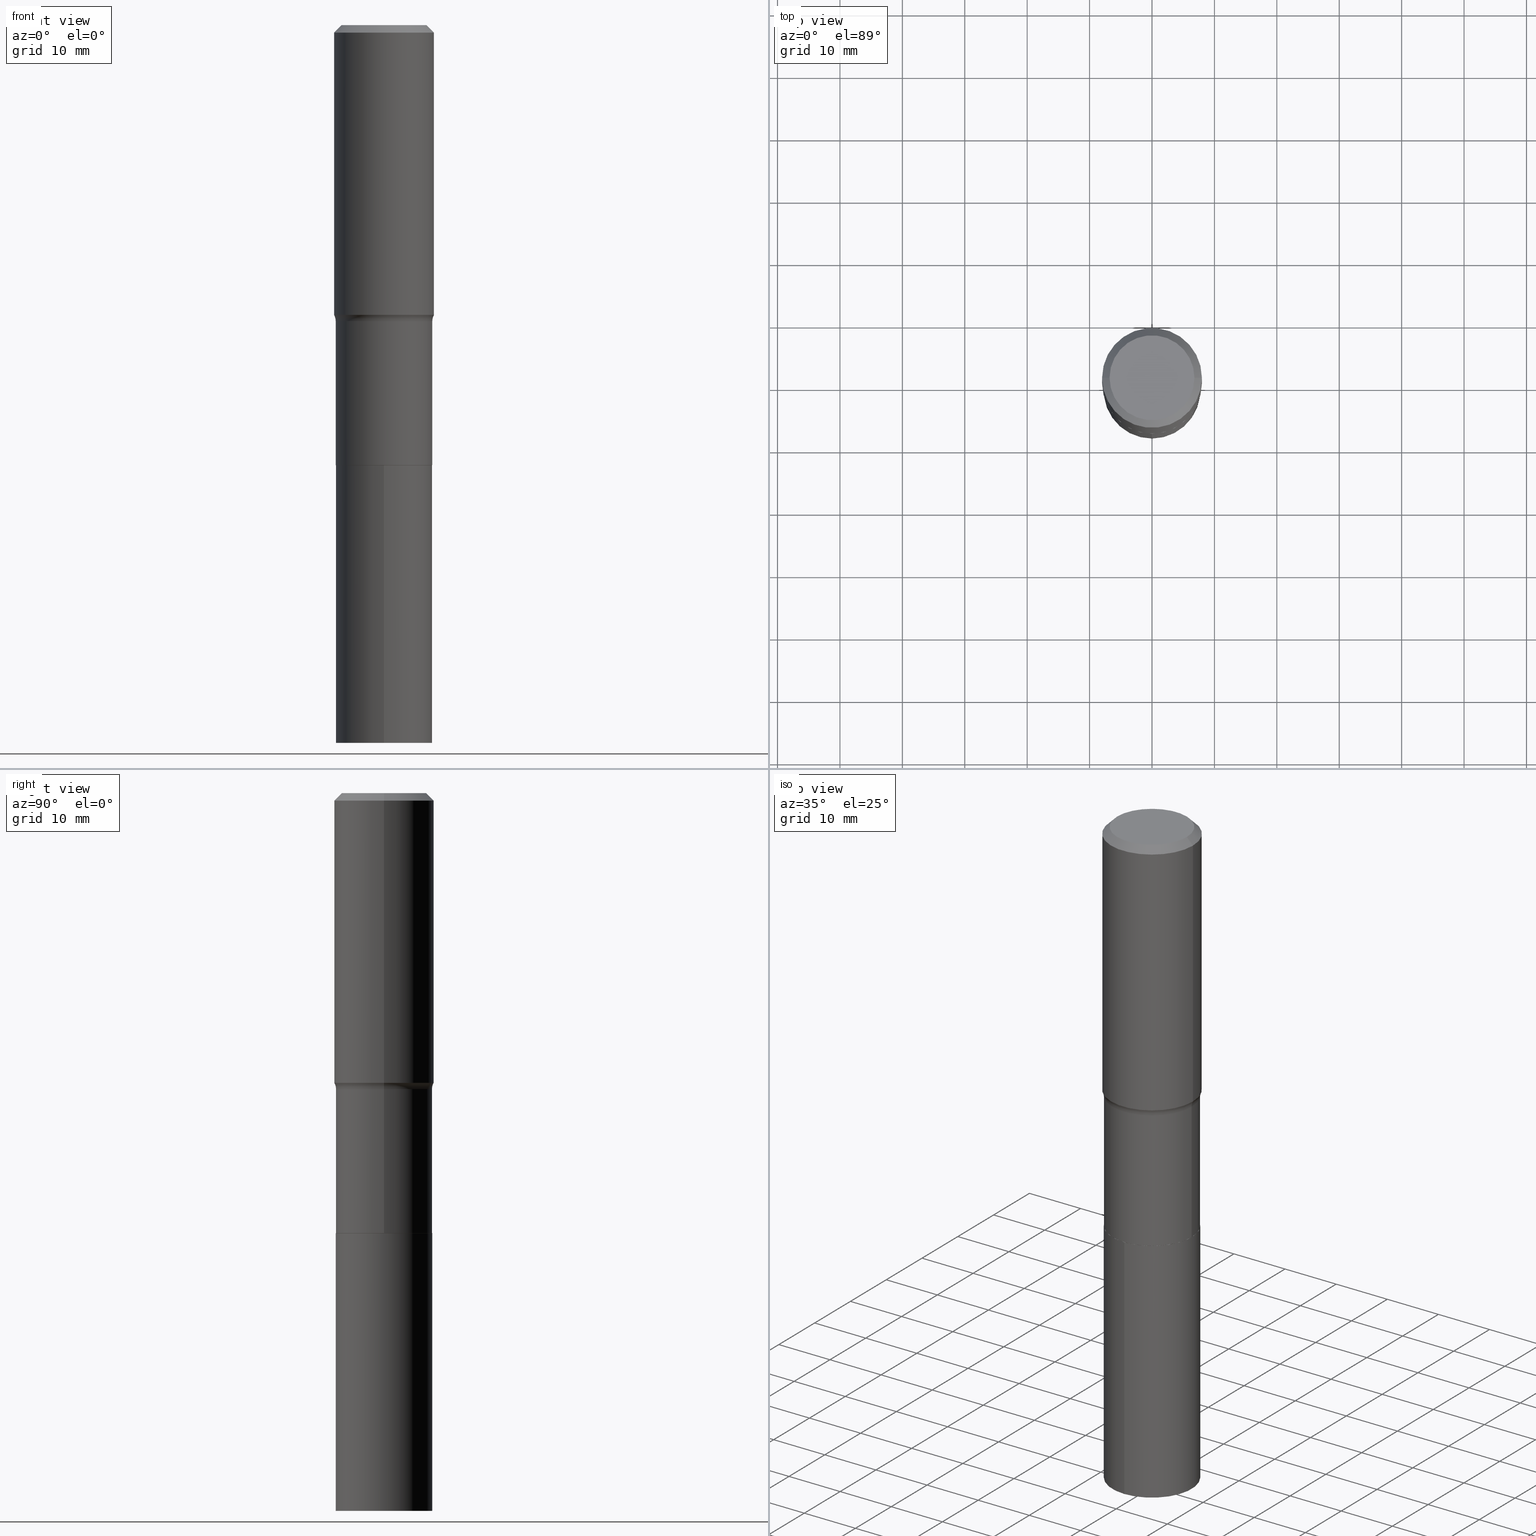
[diagram: canonical four-view strip — front | top / right | iso, engineering-drawing reading convention]
A machine part, canonical four-view strip (front | top / right | iso — engineering-drawing reading convention). The complete STEP part file that produces these views, byte-faithful:
ISO-10303-21;
HEADER;
FILE_DESCRIPTION (( 'STEP AP203' ),
    '1' );
FILE_NAME ('58852.STEP',
    '2024-04-19T14:45:43',
    ( '' ),
    ( '' ),
    'SwSTEP 2.0',
    'SolidWorks 2023',
    '' );
FILE_SCHEMA (( 'CONFIG_CONTROL_DESIGN' ));
ENDSEC;

DATA;
#1 = AXIS2_PLACEMENT_3D ( 'NONE', #260, #338, #149 ) ;
#2 = ADVANCED_FACE ( 'NONE', ( #265 ), #226, .T. ) ;
#3 = CARTESIAN_POINT ( 'NONE',  ( 1.155300600762020273E-30, -1.649463071502983032E-16, -0.04724250000000029120 ) ) ;
#4 = PERSON ( 'UNSPECIFIED', 'UNSPECIFIED', 'UNSPECIFIED', ('UNSPECIFIED'), ('UNSPECIFIED'), ('UNSPECIFIED') ) ;
#5 = DIRECTION ( 'NONE',  ( 2.445278473836501183E-29, -3.491753905599435756E-15, -1.000000000000000000 ) ) ;
#6 = DIRECTION ( 'NONE',  ( 1.000000000000000000, -6.982962677686266711E-15, 0.000000000000000000 ) ) ;
#7 = ORIENTED_EDGE ( 'NONE', *, *, #32, .F. ) ;
#8 = DIRECTION ( 'NONE',  ( -2.445468806185136597E-29, 3.491481338843145583E-15, 1.000000000000000000 ) ) ;
#9 = ORIENTED_EDGE ( 'NONE', *, *, #327, .F. ) ;
#10 = DIRECTION ( 'NONE',  ( 0.000000000000000000, 0.000000000000000000, 1.000000000000000000 ) ) ;
#11 = ORIENTED_EDGE ( 'NONE', *, *, #383, .F. ) ;
#12 = TOROIDAL_SURFACE ( 'NONE', #85, 0.3846999999999999309, 0.08000000000000000167 ) ;
#13 = DATE_AND_TIME ( #306, #319 ) ;
#14 = DIRECTION ( 'NONE',  ( -2.445468806185136597E-29, 3.491481338843145583E-15, 1.000000000000000000 ) ) ;
#15 = COORDINATED_UNIVERSAL_TIME_OFFSET ( 5, 0, .BEHIND. ) ;
#16 = ADVANCED_FACE ( 'NONE', ( #119 ), #304, .T. ) ;
#17 = EDGE_LOOP ( 'NONE', ( #438, #347, #238, #269 ) ) ;
#18 = PERSON_AND_ORGANIZATION ( #4, #198 ) ;
#19 = DIRECTION ( 'NONE',  ( -2.445278473836501183E-29, 3.491753905599435756E-15, 1.000000000000000000 ) ) ;
#20 = VECTOR ( 'NONE', #346, 39.37007874015748143 ) ;
#21 = FACE_OUTER_BOUND ( 'NONE', #113, .T. ) ;
#22 = DIRECTION ( 'NONE',  ( -2.445468806185136597E-29, 3.491481338843145583E-15, 1.000000000000000000 ) ) ;
#23 = AXIS2_PLACEMENT_3D ( 'NONE', #465, #167, #363 ) ;
#24 = DIRECTION ( 'NONE',  ( 1.000000000000000000, -6.982962677686267499E-15, 0.000000000000000000 ) ) ;
#25 = CARTESIAN_POINT ( 'NONE',  ( 0.3149500000000000077, -2.325660151548442036E-15, -0.04724250000000029120 ) ) ;
#26 = AXIS2_PLACEMENT_3D ( 'NONE', #44, #308, #49 ) ;
#27 = CYLINDRICAL_SURFACE ( 'NONE', #424, 0.3046999999999999709 ) ;
#28 = ORIENTED_EDGE ( 'NONE', *, *, #261, .F. ) ;
#29 = EDGE_LOOP ( 'NONE', ( #368, #47 ) ) ;
#30 = CIRCLE ( 'NONE', #97, 0.3149500000000001743 ) ;
#31 = CARTESIAN_POINT ( 'NONE',  ( -0.3149500000000000077, 2.034337788186991592E-15, -0.04724250000000029120 ) ) ;
#32 = EDGE_CURVE ( 'NONE', #134, #194, #415, .T. ) ;
#33 = CARTESIAN_POINT ( 'NONE',  ( 0.3042000000000000259, -1.181517285064519527E-14, -2.775599999999999845 ) ) ;
#34 = LINE ( 'NONE', #140, #139 ) ;
#35 = PRODUCT_DEFINITION_SHAPE ( 'NONE', 'NONE',  #75 ) ;
#36 = DIRECTION ( 'NONE',  ( -2.445468806185136597E-29, 3.491481338843145583E-15, 1.000000000000000000 ) ) ;
#37 = EDGE_CURVE ( 'NONE', #212, #64, #431, .T. ) ;
#38 = AXIS2_PLACEMENT_3D ( 'NONE', #432, #5, #248 ) ;
#39 = DIRECTION ( 'NONE',  ( -2.445468806185136597E-29, 3.491481338843145583E-15, 1.000000000000000000 ) ) ;
#40 = ORIENTED_EDGE ( 'NONE', *, *, #131, .T. ) ;
#41 = LINE ( 'NONE', #106, #305 ) ;
#42 = ORIENTED_EDGE ( 'NONE', *, *, #123, .F. ) ;
#43 = CALENDAR_DATE ( 2024, 19, 4 ) ;
#44 = CARTESIAN_POINT ( 'NONE',  ( 0.3846999999999999309, -9.205639697993826029E-15, -1.867199999999999749 ) ) ;
#45 = ADVANCED_FACE ( 'NONE', ( #21 ), #115, .T. ) ;
#46 = CARTESIAN_POINT ( 'NONE',  ( 0.000000000000000000, 0.000000000000000000, 0.000000000000000000 ) ) ;
#47 = ORIENTED_EDGE ( 'NONE', *, *, #466, .T. ) ;
#48 = COORDINATED_UNIVERSAL_TIME_OFFSET ( 5, 0, .BEHIND. ) ;
#49 = DIRECTION ( 'NONE',  ( 1.000000000000000000, -6.982962677686257244E-15, 0.000000000000000000 ) ) ;
#50 = DATE_AND_TIME ( #376, #218 ) ;
#51 = EDGE_CURVE ( 'NONE', #64, #212, #145, .T. ) ;
#52 = DIRECTION ( 'NONE',  ( -2.445468806185136597E-29, 3.491481338843145583E-15, 1.000000000000000000 ) ) ;
#53 = APPROVAL_PERSON_ORGANIZATION ( #116, #141, #153 ) ;
#54 = DATE_AND_TIME ( #232, #105 ) ;
#55 = ORIENTED_EDGE ( 'NONE', *, *, #147, .F. ) ;
#56 = LINE ( 'NONE', #390, #380 ) ;
#57 = CARTESIAN_POINT ( 'NONE',  ( 4.566179354908886667E-29, -6.519293955887920885E-15, -1.867199999999999749 ) ) ;
#58 = AXIS2_PLACEMENT_3D ( 'NONE', #146, #367, #369 ) ;
#59 = CC_DESIGN_PERSON_AND_ORGANIZATION_ASSIGNMENT ( #259, #225, ( #388 ) ) ;
#60 = LINE ( 'NONE', #93, #464 ) ;
#61 = ORIENTED_EDGE ( 'NONE', *, *, #249, .F. ) ;
#62 = CARTESIAN_POINT ( 'NONE',  ( 2.165023715861136289E-15, 0.3046999999999903119, -2.775600000000000733 ) ) ;
#63 = AXIS2_PLACEMENT_3D ( 'NONE', #229, #373, #341 ) ;
#64 = VERTEX_POINT ( 'NONE', #90 ) ;
#65 = DIRECTION ( 'NONE',  ( 0.7071067811864267805, -2.468850131080992517E-15, 0.7071067811866682540 ) ) ;
#66 = ADVANCED_FACE ( 'NONE', ( #307 ), #183, .T. ) ;
#67 = VERTEX_POINT ( 'NONE', #117 ) ;
#68 = CIRCLE ( 'NONE', #23, 0.3047000000000000264 ) ;
#69 = DIRECTION ( 'NONE',  ( -6.982962677686265922E-15, -1.000000000000000000, 3.586278954596997549E-15 ) ) ;
#70 = FACE_OUTER_BOUND ( 'NONE', #421, .T. ) ;
#71 = ORIENTED_EDGE ( 'NONE', *, *, #288, .T. ) ;
#72 = ORIENTED_EDGE ( 'NONE', *, *, #181, .T. ) ;
#73 =( LENGTH_UNIT ( ) NAMED_UNIT ( * ) SI_UNIT ( $, .METRE. ) );
#74 = CLOSED_SHELL ( 'NONE', ( #331, #99, #16, #223, #314, #241, #215, #45, #66, #273, #171, #82 ) ) ;
#75 = PRODUCT_DEFINITION ( 'UNKNOWN', '', #450, #176 ) ;
#76 =( CONVERSION_BASED_UNIT ( 'INCH', #253 ) LENGTH_UNIT ( ) NAMED_UNIT ( #196 ) );
#77 = AXIS2_PLACEMENT_3D ( 'NONE', #326, #281, #322 ) ;
#78 = DIRECTION ( 'NONE',  ( -2.445468806185136597E-29, 3.491481338843145583E-15, 1.000000000000000000 ) ) ;
#79 = APPROVAL_DATE_TIME ( #13, #141 ) ;
#80 = DIRECTION ( 'NONE',  ( -2.445278473836501183E-29, 3.491753905599435756E-15, 1.000000000000000000 ) ) ;
#81 = AXIS2_PLACEMENT_3D ( 'NONE', #154, #152, #448 ) ;
#82 = ADVANCED_FACE ( 'NONE', ( #263 ), #102, .T. ) ;
#83 = APPLICATION_PROTOCOL_DEFINITION ( 'international standard', 'config_control_design', 1994, #190 ) ;
#84 = CARTESIAN_POINT ( 'NONE',  ( 1.107177110460901568E-28, -1.580850844670324897E-14, -4.527600000000000513 ) ) ;
#85 = AXIS2_PLACEMENT_3D ( 'NONE', #359, #270, #354 ) ;
#86 = PERSON_AND_ORGANIZATION_ROLE ( 'design_supplier' ) ;
#87 = DIRECTION ( 'NONE',  ( -1.000000000000000000, 6.982962677686266711E-15, 0.000000000000000000 ) ) ;
#88 = CARTESIAN_POINT ( 'NONE',  ( 0.000000000000000000, 0.000000000000000000, 0.000000000000000000 ) ) ;
#89 = CALENDAR_DATE ( 2024, 19, 4 ) ;
#90 = CARTESIAN_POINT ( 'NONE',  ( -2.127708727890894629E-15, -0.3047000000000158471, -4.527599999999999625 ) ) ;
#91 = CIRCLE ( 'NONE', #402, 0.3042000000000000259 ) ;
#92 = FACE_OUTER_BOUND ( 'NONE', #362, .T. ) ;
#93 = CARTESIAN_POINT ( 'NONE',  ( -0.3042000000000000259, -7.529484601910809048E-15, -2.775599999999999845 ) ) ;
#94 = CC_DESIGN_DATE_AND_TIME_ASSIGNMENT ( #195, #333, ( #75 ) ) ;
#95 = DIRECTION ( 'NONE',  ( -2.445468806185136597E-29, 3.491481338843145583E-15, 1.000000000000000000 ) ) ;
#96 = ORIENTED_EDGE ( 'NONE', *, *, #249, .T. ) ;
#97 = AXIS2_PLACEMENT_3D ( 'NONE', #110, #216, #400 ) ;
#98 = DIRECTION ( 'NONE',  ( 1.000000000000000000, -6.982962677686267499E-15, 4.876236838442819371E-29 ) ) ;
#99 = ADVANCED_FACE ( 'NONE', ( #343 ), #374, .T. ) ;
#100 = DIRECTION ( 'NONE',  ( -2.445468806185136597E-29, 3.491481338843145583E-15, 1.000000000000000000 ) ) ;
#101 = ORIENTED_EDGE ( 'NONE', *, *, #449, .F. ) ;
#102 = CONICAL_SURFACE ( 'NONE', #213, 0.3042000000000000259, 0.7853981633972775267 ) ;
#103 = DIRECTION ( 'NONE',  ( -2.445468806185136597E-29, 3.491481338843145583E-15, 1.000000000000000000 ) ) ;
#104 = ORIENTED_EDGE ( 'NONE', *, *, #108, .F. ) ;
#105 = LOCAL_TIME ( 10, 45, 43.00000000000000000, #451 ) ;
#106 = CARTESIAN_POINT ( 'NONE',  ( -2.127708727890937622E-15, -0.3047000000000097408, -2.775599999999998513 ) ) ;
#107 = ORIENTED_EDGE ( 'NONE', *, *, #156, .T. ) ;
#108 = EDGE_CURVE ( 'NONE', #162, #274, #252, .T. ) ;
#109 = DIRECTION ( 'NONE',  ( 1.000000000000000000, -6.982962677686267499E-15, 0.000000000000000000 ) ) ;
#110 = CARTESIAN_POINT ( 'NONE',  ( 4.470370097151335704E-29, -6.382503727894485274E-15, -1.828021721579425440 ) ) ;
#111 = APPROVAL_PERSON_ORGANIZATION ( #447, #377, #411 ) ;
#112 = APPROVAL_DATE_TIME ( #371, #410 ) ;
#113 = EDGE_LOOP ( 'NONE', ( #11, #125, #353, #55 ) ) ;
#114 = PERSON_AND_ORGANIZATION ( #4, #198 ) ;
#115 = CYLINDRICAL_SURFACE ( 'NONE', #81, 0.3149500000000000632 ) ;
#116 = PERSON_AND_ORGANIZATION ( #4, #198 ) ;
#117 = CARTESIAN_POINT ( 'NONE',  ( 0.3149500000000000077, -2.364230402487588149E-15, -0.04724250000000029120 ) ) ;
#118 = CIRCLE ( 'NONE', #77, 0.3047000000000000264 ) ;
#119 = FACE_OUTER_BOUND ( 'NONE', #128, .T. ) ;
#120 = DIRECTION ( 'NONE',  ( -2.445468806185136597E-29, 3.491481338843145583E-15, 1.000000000000000000 ) ) ;
#121 = LINE ( 'NONE', #25, #209 ) ;
#122 = CIRCLE ( 'NONE', #178, 0.3046999999999999154 ) ;
#123 = EDGE_CURVE ( 'NONE', #162, #233, #200, .T. ) ;
#124 = DIRECTION ( 'NONE',  ( 1.000000000000000000, -6.982962677686265922E-15, 4.876176775795935793E-29 ) ) ;
#125 = ORIENTED_EDGE ( 'NONE', *, *, #399, .T. ) ;
#126 = FACE_OUTER_BOUND ( 'NONE', #29, .T. ) ;
#127 = AXIS2_PLACEMENT_3D ( 'NONE', #57, #235, #24 ) ;
#128 = EDGE_LOOP ( 'NONE', ( #244, #161, #460, #191 ) ) ;
#129 = CARTESIAN_POINT ( 'NONE',  ( 4.566179354908886667E-29, -6.519293955887920885E-15, -1.867199999999999749 ) ) ;
#130 = ORIENTED_EDGE ( 'NONE', *, *, #311, .T. ) ;
#131 = EDGE_CURVE ( 'NONE', #277, #207, #386, .T. ) ;
#132 = CIRCLE ( 'NONE', #389, 0.3047000000000000264 ) ;
#133 = DIRECTION ( 'NONE',  ( -2.445468806185136597E-29, 3.491481338843145583E-15, 1.000000000000000000 ) ) ;
#134 = VERTEX_POINT ( 'NONE', #310 ) ;
#135 = DIRECTION ( 'NONE',  ( 1.000000000000000000, -6.982962677686265133E-15, 0.000000000000000000 ) ) ;
#136 = AXIS2_PLACEMENT_3D ( 'NONE', #320, #100, #98 ) ;
#137 = CARTESIAN_POINT ( 'NONE',  ( -1.001697619218022568E-46, 1.430158722866391086E-32, 4.096137381448112218E-18 ) ) ;
#138 = ADVANCED_FACE ( 'NONE', ( #454 ), #258, .F. ) ;
#139 = VECTOR ( 'NONE', #184, 39.37007874015748143 ) ;
#140 = CARTESIAN_POINT ( 'NONE',  ( -0.3149500000000000632, 2.237854346276435985E-15, -1.549218606675782956E-29 ) ) ;
#141 = APPROVAL ( #228, 'UNSPECIFIED' ) ;
#142 = FACE_OUTER_BOUND ( 'NONE', #357, .T. ) ;
#143 = EDGE_LOOP ( 'NONE', ( #413, #463, #130, #328 ) ) ;
#144 = CIRCLE ( 'NONE', #309, 0.3149500000000000077 ) ;
#145 = CIRCLE ( 'NONE', #395, 0.3047000000000000264 ) ;
#146 = CARTESIAN_POINT ( 'NONE',  ( -0.3846999999999999309, -3.785836051418815961E-15, -1.867199999999999749 ) ) ;
#147 = EDGE_CURVE ( 'NONE', #296, #67, #144, .T. ) ;
#148 = AXIS2_PLACEMENT_3D ( 'NONE', #46, #10, #335 ) ;
#149 = DIRECTION ( 'NONE',  ( -6.982962677686265922E-15, -1.000000000000000000, 3.586278954596997549E-15 ) ) ;
#150 = COORDINATED_UNIVERSAL_TIME_OFFSET ( 5, 0, .BEHIND. ) ;
#151 = EDGE_CURVE ( 'NONE', #426, #280, #375, .T. ) ;
#152 = DIRECTION ( 'NONE',  ( -2.445468806185136597E-29, 3.491481338843145583E-15, 1.000000000000000000 ) ) ;
#153 = APPROVAL_ROLE ( '' ) ;
#154 = CARTESIAN_POINT ( 'NONE',  ( 0.000000000000000000, 0.000000000000000000, 0.000000000000000000 ) ) ;
#155 = CC_DESIGN_APPROVAL ( #377, ( #450 ) ) ;
#156 = EDGE_CURVE ( 'NONE', #426, #296, #387, .T. ) ;
#157 = EDGE_LOOP ( 'NONE', ( #251, #246, #393, #210 ) ) ;
#158 = DIRECTION ( 'NONE',  ( 1.000000000000000000, -6.982962677686265922E-15, 0.000000000000000000 ) ) ;
#159 = EDGE_CURVE ( 'NONE', #280, #67, #121, .T. ) ;
#160 = DIRECTION ( 'NONE',  ( -0.7071067811865453523, 2.468850131082234184E-15, -0.7071067811865496822 ) ) ;
#161 = ORIENTED_EDGE ( 'NONE', *, *, #383, .T. ) ;
#162 = VERTEX_POINT ( 'NONE', #394 ) ;
#163 = AXIS2_PLACEMENT_3D ( 'NONE', #397, #467, #284 ) ;
#164 = LINE ( 'NONE', #239, #332 ) ;
#165 = CARTESIAN_POINT ( 'NONE',  ( 6.787643218447464969E-29, -9.690955604093032420E-15, -2.775599999999999845 ) ) ;
#166 = ORIENTED_EDGE ( 'NONE', *, *, #423, .T. ) ;
#167 = DIRECTION ( 'NONE',  ( -2.445468806185136597E-29, 3.491481338843145583E-15, 1.000000000000000000 ) ) ;
#168 = ORIENTED_EDGE ( 'NONE', *, *, #271, .T. ) ;
#169 = CONICAL_SURFACE ( 'NONE', #163, 0.3042000000000000259, 0.7853981633972775267 ) ;
#170 = DIRECTION ( 'NONE',  ( 1.000000000000000000, -6.982962677686266711E-15, 0.000000000000000000 ) ) ;
#171 = ADVANCED_FACE ( 'NONE', ( #237 ), #312, .F. ) ;
#172 = CARTESIAN_POINT ( 'NONE',  ( 0.3149500000000000632, -2.199284095337290265E-15, 1.535751875536930410E-29 ) ) ;
#173 = AXIS2_PLACEMENT_3D ( 'NONE', #405, #80, #370 ) ;
#174 = AXIS2_PLACEMENT_3D ( 'NONE', #461, #245, #124 ) ;
#175 = CC_DESIGN_PERSON_AND_ORGANIZATION_ASSIGNMENT ( #185, #414, ( #75 ) ) ;
#176 = DESIGN_CONTEXT ( 'detailed design', #217, 'design' ) ;
#177 = CARTESIAN_POINT ( 'NONE',  ( 6.787643218447464969E-29, -9.690955604093032420E-15, -2.775599999999999845 ) ) ;
#178 = AXIS2_PLACEMENT_3D ( 'NONE', #403, #78, #109 ) ;
#179 = DIRECTION ( 'NONE',  ( -2.445468806185136877E-29, 3.491481338843145188E-15, 1.000000000000000000 ) ) ;
#180 = CARTESIAN_POINT ( 'NONE',  ( -0.2677074999999999871, 1.951864634611843833E-15, 4.096137381434750116E-18 ) ) ;
#181 = EDGE_CURVE ( 'NONE', #274, #194, #302, .T. ) ;
#182 = AXIS2_PLACEMENT_3D ( 'NONE', #266, #199, #222 ) ;
#183 = CONICAL_SURFACE ( 'NONE', #446, 0.3149500000000000077, 0.7853981633974452814 ) ;
#184 = DIRECTION ( 'NONE',  ( -2.445468806185136877E-29, 3.491481338843145188E-15, 1.000000000000000000 ) ) ;
#185 = PERSON_AND_ORGANIZATION ( #4, #198 ) ;
#186 =( GEOMETRIC_REPRESENTATION_CONTEXT ( 3 ) GLOBAL_UNCERTAINTY_ASSIGNED_CONTEXT ( ( #391 ) ) GLOBAL_UNIT_ASSIGNED_CONTEXT ( ( #76, #303, #299 ) ) REPRESENTATION_CONTEXT ( 'NONE', 'WORKASPACE' ) );
#187 = CARTESIAN_POINT ( 'NONE',  ( 1.155300600762020273E-30, -1.649463071502983032E-16, -0.04724250000000029120 ) ) ;
#188 = EDGE_CURVE ( 'NONE', #291, #412, #224, .T. ) ;
#189 = PERSON_AND_ORGANIZATION ( #4, #198 ) ;
#190 = APPLICATION_CONTEXT ( 'configuration controlled 3d designs of mechanical parts and assemblies' ) ;
#191 = ORIENTED_EDGE ( 'NONE', *, *, #407, .F. ) ;
#192 = COORDINATED_UNIVERSAL_TIME_OFFSET ( 5, 0, .BEHIND. ) ;
#193 = EDGE_CURVE ( 'NONE', #291, #247, #164, .T. ) ;
#194 = VERTEX_POINT ( 'NONE', #267 ) ;
#195 = DATE_AND_TIME ( #89, #313 ) ;
#196 = DIMENSIONAL_EXPONENTS ( 1.000000000000000000, 0.000000000000000000, 0.000000000000000000, 0.000000000000000000, 0.000000000000000000, 0.000000000000000000, 0.000000000000000000 ) ;
#197 = CARTESIAN_POINT ( 'NONE',  ( -0.3046999999999999709, 2.165023715861025059E-15, -1.498799522000669571E-29 ) ) ;
#198 = ORGANIZATION ( 'UNSPECIFIED', 'UNSPECIFIED', '' ) ;
#199 = DIRECTION ( 'NONE',  ( -2.445278473836501183E-29, 3.491753905599435756E-15, 1.000000000000000000 ) ) ;
#200 = CIRCLE ( 'NONE', #290, 0.3149500000000001743 ) ;
#201 = VECTOR ( 'NONE', #160, 39.37007874015748143 ) ;
#202 = DIRECTION ( 'NONE',  ( -2.445468806185136877E-29, 3.491481338843145188E-15, 1.000000000000000000 ) ) ;
#203 = FACE_OUTER_BOUND ( 'NONE', #294, .T. ) ;
#204 = AXIS2_PLACEMENT_3D ( 'NONE', #129, #133, #318 ) ;
#205 = SECURITY_CLASSIFICATION ( '', '', #404 ) ;
#206 = PLANE ( 'NONE',  #268 ) ;
#207 = VERTEX_POINT ( 'NONE', #242 ) ;
#208 = CARTESIAN_POINT ( 'NONE',  ( 0.2677074999999999871, -2.081133459643432233E-15, 4.096137381461924987E-18 ) ) ;
#209 = VECTOR ( 'NONE', #272, 39.37007874015748143 ) ;
#210 = ORIENTED_EDGE ( 'NONE', *, *, #423, .F. ) ;
#211 = ORIENTED_EDGE ( 'NONE', *, *, #108, .T. ) ;
#212 = VERTEX_POINT ( 'NONE', #417 ) ;
#213 = AXIS2_PLACEMENT_3D ( 'NONE', #452, #52, #334 ) ;
#214 = DIRECTION ( 'NONE',  ( 1.000000000000000000, -6.982962677686267499E-15, 4.876236838442819371E-29 ) ) ;
#215 = ADVANCED_FACE ( 'NONE', ( #92 ), #350, .F. ) ;
#216 = DIRECTION ( 'NONE',  ( -2.445468806185136597E-29, 3.491481338843145583E-15, 1.000000000000000000 ) ) ;
#217 = APPLICATION_CONTEXT ( 'configuration controlled 3d designs of mechanical parts and assemblies' ) ;
#218 = LOCAL_TIME ( 10, 45, 43.00000000000000000, #150 ) ;
#219 = CARTESIAN_POINT ( 'NONE',  ( 0.000000000000000000, 0.000000000000000000, 0.000000000000000000 ) ) ;
#220 = DIRECTION ( 'NONE',  ( 1.000000000000000000, -6.982962677686266711E-15, 0.000000000000000000 ) ) ;
#221 = SHAPE_DEFINITION_REPRESENTATION ( #35, #255 ) ;
#222 = DIRECTION ( 'NONE',  ( -6.982962677686265922E-15, -1.000000000000000000, 3.586278954596997549E-15 ) ) ;
#223 = ADVANCED_FACE ( 'NONE', ( #351 ), #12, .F. ) ;
#224 = CIRCLE ( 'NONE', #459, 0.3042000000000000259 ) ;
#225 = PERSON_AND_ORGANIZATION_ROLE ( 'design_owner' ) ;
#226 = CYLINDRICAL_SURFACE ( 'NONE', #1, 0.3047000000000000264 ) ;
#227 = CC_DESIGN_PERSON_AND_ORGANIZATION_ASSIGNMENT ( #18, #441, ( #450 ) ) ;
#228 = APPROVAL_STATUS ( 'not_yet_approved' ) ;
#229 = CARTESIAN_POINT ( 'NONE',  ( 1.155300600762020273E-30, -1.649463071502983032E-16, -0.04724250000000029120 ) ) ;
#230 = APPROVAL_STATUS ( 'not_yet_approved' ) ;
#231 = DIRECTION ( 'NONE',  ( -2.445468806185136877E-29, 3.491481338843145188E-15, 1.000000000000000000 ) ) ;
#232 = CALENDAR_DATE ( 2024, 19, 4 ) ;
#233 = VERTEX_POINT ( 'NONE', #456 ) ;
#234 = CC_DESIGN_APPROVAL ( #410, ( #75 ) ) ;
#235 = DIRECTION ( 'NONE',  ( -2.445468806185136597E-29, 3.491481338843145583E-15, 1.000000000000000000 ) ) ;
#236 = ORIENTED_EDGE ( 'NONE', *, *, #51, .F. ) ;
#237 = FACE_OUTER_BOUND ( 'NONE', #355, .T. ) ;
#238 = ORIENTED_EDGE ( 'NONE', *, *, #416, .F. ) ;
#239 = CARTESIAN_POINT ( 'NONE',  ( 0.3042000000000000259, -1.181517285064519527E-14, -2.775599999999999845 ) ) ;
#240 = CIRCLE ( 'NONE', #286, 0.3149500000000000077 ) ;
#241 = ADVANCED_FACE ( 'NONE', ( #203 ), #27, .T. ) ;
#242 = CARTESIAN_POINT ( 'NONE',  ( -2.127708727890937622E-15, -0.3047000000000097408, -2.775599999999998513 ) ) ;
#243 = ORIENTED_EDGE ( 'NONE', *, *, #151, .F. ) ;
#244 = ORIENTED_EDGE ( 'NONE', *, *, #123, .T. ) ;
#245 = DIRECTION ( 'NONE',  ( -2.438088387897960049E-29, 3.491481338843145188E-15, 1.000000000000000000 ) ) ;
#246 = ORIENTED_EDGE ( 'NONE', *, *, #449, .T. ) ;
#247 = VERTEX_POINT ( 'NONE', #384 ) ;
#248 = DIRECTION ( 'NONE',  ( 6.982962677686265922E-15, 1.000000000000000000, -3.491753905599435756E-15 ) ) ;
#249 = EDGE_CURVE ( 'NONE', #247, #274, #56, .T. ) ;
#250 = LOCAL_TIME ( 10, 45, 43.00000000000000000, #192 ) ;
#251 = ORIENTED_EDGE ( 'NONE', *, *, #271, .F. ) ;
#252 = CIRCLE ( 'NONE', #26, 0.08000000000000002942 ) ;
#253 = LENGTH_MEASURE_WITH_UNIT ( LENGTH_MEASURE( 0.02539999999999999897 ), #73 );
#254 = CARTESIAN_POINT ( 'NONE',  ( 6.786420484044372168E-29, -9.689209863423613283E-15, -2.775099999999999678 ) ) ;
#255 = ADVANCED_BREP_SHAPE_REPRESENTATION ( '58852', ( #282, #442, #148 ), #186 ) ;
#256 = ORIENTED_EDGE ( 'NONE', *, *, #188, .F. ) ;
#257 = PERSON_AND_ORGANIZATION ( #4, #198 ) ;
#258 = PLANE ( 'NONE',  #173 ) ;
#259 = PERSON_AND_ORGANIZATION ( #4, #198 ) ;
#260 = CARTESIAN_POINT ( 'NONE',  ( 6.787643218447464969E-29, -9.690955604093032420E-15, -2.775599999999999845 ) ) ;
#261 = EDGE_CURVE ( 'NONE', #212, #277, #419, .T. ) ;
#262 = AXIS2_PLACEMENT_3D ( 'NONE', #219, #103, #430 ) ;
#263 = FACE_OUTER_BOUND ( 'NONE', #157, .T. ) ;
#264 = APPROVAL_STATUS ( 'not_yet_approved' ) ;
#265 = FACE_OUTER_BOUND ( 'NONE', #17, .T. ) ;
#266 = CARTESIAN_POINT ( 'NONE',  ( 6.787643218447464969E-29, -9.690955604093032420E-15, -2.775599999999999845 ) ) ;
#267 = CARTESIAN_POINT ( 'NONE',  ( -0.3046999999999999154, -5.939228193794742419E-15, -1.867199999999999749 ) ) ;
#268 = AXIS2_PLACEMENT_3D ( 'NONE', #317, #276, #425 ) ;
#269 = ORIENTED_EDGE ( 'NONE', *, *, #364, .F. ) ;
#270 = DIRECTION ( 'NONE',  ( -2.445468806185136597E-29, 3.491481338843145583E-15, 1.000000000000000000 ) ) ;
#271 = EDGE_CURVE ( 'NONE', #412, #134, #60, .T. ) ;
#272 = DIRECTION ( 'NONE',  ( 0.7071067811865453523, -7.319954787623248157E-15, -0.7071067811865496822 ) ) ;
#273 = ADVANCED_FACE ( 'NONE', ( #126 ), #206, .F. ) ;
#274 = VERTEX_POINT ( 'NONE', #392 ) ;
#275 = EDGE_LOOP ( 'NONE', ( #440, #243, #107, #356 ) ) ;
#276 = DIRECTION ( 'NONE',  ( 2.438088387897960049E-29, -3.491481338843145188E-15, -1.000000000000000000 ) ) ;
#277 = VERTEX_POINT ( 'NONE', #62 ) ;
#278 = DIRECTION ( 'NONE',  ( 1.000000000000000000, -6.982962677686265922E-15, 4.876176775795935232E-29 ) ) ;
#279 = ORIENTED_EDGE ( 'NONE', *, *, #37, .F. ) ;
#280 = VERTEX_POINT ( 'NONE', #208 ) ;
#281 = DIRECTION ( 'NONE',  ( -2.445278473836501183E-29, 3.491753905599435756E-15, 1.000000000000000000 ) ) ;
#282 = MANIFOLD_SOLID_BREP ( 'Body-Move/Copy2[1]', #345 ) ;
#283 = AXIS2_PLACEMENT_3D ( 'NONE', #88, #22, #406 ) ;
#284 = DIRECTION ( 'NONE',  ( 1.000000000000000000, -6.982962677686266711E-15, 0.000000000000000000 ) ) ;
#285 = EDGE_LOOP ( 'NONE', ( #352, #427, #418, #104 ) ) ;
#286 = AXIS2_PLACEMENT_3D ( 'NONE', #3, #36, #220 ) ;
#287 = DIRECTION ( 'NONE',  ( -2.445278473836501183E-29, 3.491753905599435756E-15, 1.000000000000000000 ) ) ;
#288 = EDGE_CURVE ( 'NONE', #247, #134, #68, .T. ) ;
#289 = FACE_OUTER_BOUND ( 'NONE', #457, .T. ) ;
#290 = AXIS2_PLACEMENT_3D ( 'NONE', #453, #120, #158 ) ;
#291 = VERTEX_POINT ( 'NONE', #33 ) ;
#292 = CC_DESIGN_DATE_AND_TIME_ASSIGNMENT ( #50, #340, ( #205 ) ) ;
#293 = VECTOR ( 'NONE', #231, 39.37007874015748143 ) ;
#294 = EDGE_LOOP ( 'NONE', ( #7, #166, #96, #429 ) ) ;
#295 = CARTESIAN_POINT ( 'NONE',  ( -0.3149500000000000077, -1.035870671245955397E-15, -0.04724250000000029120 ) ) ;
#296 = VERTEX_POINT ( 'NONE', #295 ) ;
#297 = CC_DESIGN_SECURITY_CLASSIFICATION ( #205, ( #450 ) ) ;
#298 = MECHANICAL_CONTEXT ( 'NONE', #190, 'mechanical' ) ;
#299 =( NAMED_UNIT ( * ) SI_UNIT ( $, .STERADIAN. ) SOLID_ANGLE_UNIT ( ) );
#300 = PRODUCT_RELATED_PRODUCT_CATEGORY ( 'detail', '', ( #388 ) ) ;
#301 = DIRECTION ( 'NONE',  ( -6.982962677686265922E-15, -1.000000000000000000, 3.586278954596997549E-15 ) ) ;
#302 = CIRCLE ( 'NONE', #127, 0.3046999999999999154 ) ;
#303 =( NAMED_UNIT ( * ) PLANE_ANGLE_UNIT ( ) SI_UNIT ( $, .RADIAN. ) );
#304 = CYLINDRICAL_SURFACE ( 'NONE', #283, 0.3149500000000000632 ) ;
#305 = VECTOR ( 'NONE', #287, 39.37007874015748143 ) ;
#306 = CALENDAR_DATE ( 2024, 19, 4 ) ;
#307 = FACE_OUTER_BOUND ( 'NONE', #275, .T. ) ;
#308 = DIRECTION ( 'NONE',  ( -6.982962677686266711E-15, -1.000000000000000000, 3.491481338843145583E-15 ) ) ;
#309 = AXIS2_PLACEMENT_3D ( 'NONE', #187, #14, #428 ) ;
#310 = CARTESIAN_POINT ( 'NONE',  ( -0.3047000000000000264, -5.939228193794740841E-15, -2.775099999999999678 ) ) ;
#311 = EDGE_CURVE ( 'NONE', #67, #296, #240, .T. ) ;
#312 = PLANE ( 'NONE',  #174 ) ;
#313 = LOCAL_TIME ( 10, 45, 43.00000000000000000, #15 ) ;
#314 = ADVANCED_FACE ( 'NONE', ( #324 ), #366, .T. ) ;
#315 = CARTESIAN_POINT ( 'NONE',  ( 0.000000000000000000, 0.000000000000000000, 0.000000000000000000 ) ) ;
#316 = ORIENTED_EDGE ( 'NONE', *, *, #416, .T. ) ;
#317 = CARTESIAN_POINT ( 'NONE',  ( -5.008488096090112840E-47, 7.150793614331955432E-33, 2.048068690724056109E-18 ) ) ;
#318 = DIRECTION ( 'NONE',  ( 1.000000000000000000, -6.982962677686264344E-15, 4.883557194083112340E-29 ) ) ;
#319 = LOCAL_TIME ( 10, 45, 43.00000000000000000, #48 ) ;
#320 = CARTESIAN_POINT ( 'NONE',  ( -1.001697619218022568E-46, 1.430158722866391086E-32, 4.096137381448112218E-18 ) ) ;
#321 = AXIS2_PLACEMENT_3D ( 'NONE', #84, #19, #301 ) ;
#322 = DIRECTION ( 'NONE',  ( -6.982962677686265922E-15, -1.000000000000000000, 3.586278954596997549E-15 ) ) ;
#323 = ORIENTED_EDGE ( 'NONE', *, *, #288, .F. ) ;
#324 = FACE_OUTER_BOUND ( 'NONE', #379, .T. ) ;
#325 = VECTOR ( 'NONE', #179, 39.37007874015748143 ) ;
#326 = CARTESIAN_POINT ( 'NONE',  ( 6.787643218447464969E-29, -9.690955604093032420E-15, -2.775599999999999845 ) ) ;
#327 = EDGE_CURVE ( 'NONE', #233, #194, #339, .T. ) ;
#328 = ORIENTED_EDGE ( 'NONE', *, *, #156, .F. ) ;
#329 = DIRECTION ( 'NONE',  ( -2.445468806185136597E-29, 3.491481338843145583E-15, 1.000000000000000000 ) ) ;
#330 = APPROVAL_DATE_TIME ( #54, #377 ) ;
#331 = ADVANCED_FACE ( 'NONE', ( #70 ), #169, .T. ) ;
#332 = VECTOR ( 'NONE', #65, 39.37007874015748143 ) ;
#333 = DATE_TIME_ROLE ( 'creation_date' ) ;
#334 = DIRECTION ( 'NONE',  ( 1.000000000000000000, -6.982962677686266711E-15, 0.000000000000000000 ) ) ;
#335 = DIRECTION ( 'NONE',  ( 1.000000000000000000, 0.000000000000000000, 0.000000000000000000 ) ) ;
#336 = ORIENTED_EDGE ( 'NONE', *, *, #188, .T. ) ;
#337 = PERSON_AND_ORGANIZATION_ROLE ( 'classification_officer' ) ;
#338 = DIRECTION ( 'NONE',  ( -2.445278473836501183E-29, 3.491753905599435756E-15, 1.000000000000000000 ) ) ;
#339 = CIRCLE ( 'NONE', #58, 0.08000000000000002942 ) ;
#340 = DATE_TIME_ROLE ( 'classification_date' ) ;
#341 = DIRECTION ( 'NONE',  ( -1.000000000000000000, 6.982962677686266711E-15, 0.000000000000000000 ) ) ;
#342 = ORIENTED_EDGE ( 'NONE', *, *, #364, .T. ) ;
#343 = FACE_OUTER_BOUND ( 'NONE', #143, .T. ) ;
#344 = ORIENTED_EDGE ( 'NONE', *, *, #37, .T. ) ;
#345 = CLOSED_SHELL ( 'NONE', ( #2, #138, #462, #348 ) ) ;
#346 = DIRECTION ( 'NONE',  ( -2.445278473836501183E-29, 3.491753905599435756E-15, 1.000000000000000000 ) ) ;
#347 = ORIENTED_EDGE ( 'NONE', *, *, #261, .T. ) ;
#348 = ADVANCED_FACE ( 'NONE', ( #142 ), #437, .F. ) ;
#349 = DIRECTION ( 'NONE',  ( -2.445468806185136597E-29, 3.491481338843145583E-15, 1.000000000000000000 ) ) ;
#350 = TOROIDAL_SURFACE ( 'NONE', #204, 0.3846999999999999309, 0.08000000000000000167 ) ;
#351 = FACE_OUTER_BOUND ( 'NONE', #285, .T. ) ;
#352 = ORIENTED_EDGE ( 'NONE', *, *, #399, .F. ) ;
#353 = ORIENTED_EDGE ( 'NONE', *, *, #407, .T. ) ;
#354 = DIRECTION ( 'NONE',  ( 1.000000000000000000, -6.982962677686264344E-15, 4.883557194083112340E-29 ) ) ;
#355 = EDGE_LOOP ( 'NONE', ( #256, #101 ) ) ;
#356 = ORIENTED_EDGE ( 'NONE', *, *, #147, .T. ) ;
#357 = EDGE_LOOP ( 'NONE', ( #316, #40 ) ) ;
#358 = ORIENTED_EDGE ( 'NONE', *, *, #32, .T. ) ;
#359 = CARTESIAN_POINT ( 'NONE',  ( 4.566179354908886667E-29, -6.519293955887920885E-15, -1.867199999999999749 ) ) ;
#360 = AXIS2_PLACEMENT_3D ( 'NONE', #436, #365, #69 ) ;
#361 = ORIENTED_EDGE ( 'NONE', *, *, #181, .F. ) ;
#362 = EDGE_LOOP ( 'NONE', ( #9, #42, #211, #72 ) ) ;
#363 = DIRECTION ( 'NONE',  ( 1.000000000000000000, -6.982962677686265133E-15, 0.000000000000000000 ) ) ;
#364 = EDGE_CURVE ( 'NONE', #64, #207, #41, .T. ) ;
#365 = DIRECTION ( 'NONE',  ( -2.445278473836501183E-29, 3.491753905599435756E-15, 1.000000000000000000 ) ) ;
#366 = CYLINDRICAL_SURFACE ( 'NONE', #262, 0.3046999999999999709 ) ;
#367 = DIRECTION ( 'NONE',  ( 7.105427357601001859E-15, 1.000000000000000000, -3.491481338843145583E-15 ) ) ;
#368 = ORIENTED_EDGE ( 'NONE', *, *, #151, .T. ) ;
#369 = DIRECTION ( 'NONE',  ( -1.000000000000000000, 7.105427357601001859E-15, 0.000000000000000000 ) ) ;
#370 = DIRECTION ( 'NONE',  ( -6.982962677686265922E-15, -1.000000000000000000, 3.491753905599435756E-15 ) ) ;
#371 = DATE_AND_TIME ( #43, #250 ) ;
#372 = CARTESIAN_POINT ( 'NONE',  ( 1.155300600762020273E-30, -1.649463071502983032E-16, -0.04724250000000029120 ) ) ;
#373 = DIRECTION ( 'NONE',  ( 2.445468806185136597E-29, -3.491481338843145583E-15, -1.000000000000000000 ) ) ;
#374 = CONICAL_SURFACE ( 'NONE', #63, 0.3149500000000000077, 0.7853981633974452814 ) ;
#375 = CIRCLE ( 'NONE', #136, 0.2677074999999999871 ) ;
#376 = CALENDAR_DATE ( 2024, 19, 4 ) ;
#377 = APPROVAL ( #264, 'UNSPECIFIED' ) ;
#378 = DIRECTION ( 'NONE',  ( -6.982962677686265922E-15, -1.000000000000000000, 3.586278954596997549E-15 ) ) ;
#379 = EDGE_LOOP ( 'NONE', ( #71, #358, #361, #61 ) ) ;
#380 = VECTOR ( 'NONE', #202, 39.37007874015748143 ) ;
#381 = APPROVAL_ROLE ( '' ) ;
#382 = DIRECTION ( 'NONE',  ( 2.445468806185136597E-29, -3.491481338843145583E-15, -1.000000000000000000 ) ) ;
#383 = EDGE_CURVE ( 'NONE', #233, #296, #34, .T. ) ;
#384 = CARTESIAN_POINT ( 'NONE',  ( 0.3047000000000000264, -1.181691859131461756E-14, -2.775099999999999678 ) ) ;
#385 = CC_DESIGN_PERSON_AND_ORGANIZATION_ASSIGNMENT ( #189, #337, ( #205 ) ) ;
#386 = CIRCLE ( 'NONE', #182, 0.3047000000000000264 ) ;
#387 = LINE ( 'NONE', #31, #201 ) ;
#388 = PRODUCT ( '58852', '58852', '', ( #298 ) ) ;
#389 = AXIS2_PLACEMENT_3D ( 'NONE', #254, #39, #135 ) ;
#390 = CARTESIAN_POINT ( 'NONE',  ( 0.3046999999999999709, -2.127708727891005069E-15, 1.485771063585021258E-29 ) ) ;
#391 = UNCERTAINTY_MEASURE_WITH_UNIT (LENGTH_MEASURE( 1.000000000000000082E-05 ), #76, 'distance_accuracy_value', 'NONE');
#392 = CARTESIAN_POINT ( 'NONE',  ( 0.3046999999999999154, -8.647002683778925954E-15, -1.867199999999999749 ) ) ;
#393 = ORIENTED_EDGE ( 'NONE', *, *, #193, .T. ) ;
#394 = CARTESIAN_POINT ( 'NONE',  ( 0.3149500000000001743, -8.581787823231775145E-15, -1.828021721579425440 ) ) ;
#395 = AXIS2_PLACEMENT_3D ( 'NONE', #409, #445, #378 ) ;
#396 = CYLINDRICAL_SURFACE ( 'NONE', #360, 0.3047000000000000264 ) ;
#397 = CARTESIAN_POINT ( 'NONE',  ( 6.787643218447464969E-29, -9.690955604093032420E-15, -2.775599999999999845 ) ) ;
#398 = ORIENTED_EDGE ( 'NONE', *, *, #193, .F. ) ;
#399 = EDGE_CURVE ( 'NONE', #233, #162, #30, .T. ) ;
#400 = DIRECTION ( 'NONE',  ( 1.000000000000000000, -6.982962677686265922E-15, 0.000000000000000000 ) ) ;
#401 = CARTESIAN_POINT ( 'NONE',  ( -0.3042000000000000259, -7.526835374736697058E-15, -2.775599999999999845 ) ) ;
#402 = AXIS2_PLACEMENT_3D ( 'NONE', #177, #329, #6 ) ;
#403 = CARTESIAN_POINT ( 'NONE',  ( 4.566179354908886667E-29, -6.519293955887920885E-15, -1.867199999999999749 ) ) ;
#404 = SECURITY_CLASSIFICATION_LEVEL ( 'unclassified' ) ;
#405 = CARTESIAN_POINT ( 'NONE',  ( -2.662971461644766831E-30, -3.204526750457958666E-14, -4.527600000000000513 ) ) ;
#406 = DIRECTION ( 'NONE',  ( 1.000000000000000000, -6.982962677686266711E-15, 4.876176775795936353E-29 ) ) ;
#407 = EDGE_CURVE ( 'NONE', #162, #67, #435, .T. ) ;
#408 = CIRCLE ( 'NONE', #434, 0.2677074999999999871 ) ;
#409 = CARTESIAN_POINT ( 'NONE',  ( 1.107177110460901568E-28, -1.580850844670324897E-14, -4.527600000000000513 ) ) ;
#410 = APPROVAL ( #230, 'UNSPECIFIED' ) ;
#411 = APPROVAL_ROLE ( '' ) ;
#412 = VERTEX_POINT ( 'NONE', #401 ) ;
#413 = ORIENTED_EDGE ( 'NONE', *, *, #466, .F. ) ;
#414 = PERSON_AND_ORGANIZATION_ROLE ( 'creator' ) ;
#415 = LINE ( 'NONE', #197, #293 ) ;
#416 = EDGE_CURVE ( 'NONE', #207, #277, #118, .T. ) ;
#417 = CARTESIAN_POINT ( 'NONE',  ( 2.165023715861114595E-15, 0.3046999999999842057, -4.527600000000001401 ) ) ;
#418 = ORIENTED_EDGE ( 'NONE', *, *, #444, .T. ) ;
#419 = LINE ( 'NONE', #420, #20 ) ;
#420 = CARTESIAN_POINT ( 'NONE',  ( 2.165023715861093296E-15, 0.3046999999999903119, -2.775600000000000733 ) ) ;
#421 = EDGE_LOOP ( 'NONE', ( #336, #168, #323, #398 ) ) ;
#422 = ORIENTED_EDGE ( 'NONE', *, *, #131, .F. ) ;
#423 = EDGE_CURVE ( 'NONE', #134, #247, #132, .T. ) ;
#424 = AXIS2_PLACEMENT_3D ( 'NONE', #315, #349, #278 ) ;
#425 = DIRECTION ( 'NONE',  ( -1.000000000000000000, 6.982962677686265922E-15, -4.876176775795935793E-29 ) ) ;
#426 = VERTEX_POINT ( 'NONE', #180 ) ;
#427 = ORIENTED_EDGE ( 'NONE', *, *, #327, .T. ) ;
#428 = DIRECTION ( 'NONE',  ( 1.000000000000000000, -6.982962677686266711E-15, 0.000000000000000000 ) ) ;
#429 = ORIENTED_EDGE ( 'NONE', *, *, #444, .F. ) ;
#430 = DIRECTION ( 'NONE',  ( 1.000000000000000000, -6.982962677686265922E-15, 4.876176775795935232E-29 ) ) ;
#431 = CIRCLE ( 'NONE', #321, 0.3047000000000000264 ) ;
#432 = CARTESIAN_POINT ( 'NONE',  ( 6.787643218447464969E-29, -9.690955604093032420E-15, -2.775599999999999845 ) ) ;
#433 = CC_DESIGN_PERSON_AND_ORGANIZATION_ASSIGNMENT ( #257, #86, ( #450 ) ) ;
#434 = AXIS2_PLACEMENT_3D ( 'NONE', #137, #8, #214 ) ;
#435 = LINE ( 'NONE', #172, #325 ) ;
#436 = CARTESIAN_POINT ( 'NONE',  ( 6.787643218447464969E-29, -9.690955604093032420E-15, -2.775599999999999845 ) ) ;
#437 = PLANE ( 'NONE',  #38 ) ;
#438 = ORIENTED_EDGE ( 'NONE', *, *, #51, .T. ) ;
#439 = CC_DESIGN_APPROVAL ( #141, ( #205 ) ) ;
#440 = ORIENTED_EDGE ( 'NONE', *, *, #159, .F. ) ;
#441 = PERSON_AND_ORGANIZATION_ROLE ( 'creator' ) ;
#442 = MANIFOLD_SOLID_BREP ( 'Body-Move/Copy2[2]', #74 ) ;
#443 = APPLICATION_PROTOCOL_DEFINITION ( 'international standard', 'config_control_design', 1994, #217 ) ;
#444 = EDGE_CURVE ( 'NONE', #194, #274, #122, .T. ) ;
#445 = DIRECTION ( 'NONE',  ( -2.445278473836501183E-29, 3.491753905599435756E-15, 1.000000000000000000 ) ) ;
#446 = AXIS2_PLACEMENT_3D ( 'NONE', #372, #382, #87 ) ;
#447 = PERSON_AND_ORGANIZATION ( #4, #198 ) ;
#448 = DIRECTION ( 'NONE',  ( 1.000000000000000000, -6.982962677686266711E-15, 4.876176775795936353E-29 ) ) ;
#449 = EDGE_CURVE ( 'NONE', #412, #291, #91, .T. ) ;
#450 = PRODUCT_DEFINITION_FORMATION_WITH_SPECIFIED_SOURCE ( 'ANY', '', #388, .NOT_KNOWN. ) ;
#451 = COORDINATED_UNIVERSAL_TIME_OFFSET ( 5, 0, .BEHIND. ) ;
#452 = CARTESIAN_POINT ( 'NONE',  ( 6.787643218447464969E-29, -9.690955604093032420E-15, -2.775599999999999845 ) ) ;
#453 = CARTESIAN_POINT ( 'NONE',  ( 4.470370097151335704E-29, -6.382503727894485274E-15, -1.828021721579425440 ) ) ;
#454 = FACE_OUTER_BOUND ( 'NONE', #468, .T. ) ;
#455 = APPROVAL_PERSON_ORGANIZATION ( #114, #410, #381 ) ;
#456 = CARTESIAN_POINT ( 'NONE',  ( -0.3149500000000001743, -4.144649381618048500E-15, -1.828021721579425440 ) ) ;
#457 = EDGE_LOOP ( 'NONE', ( #28, #344, #342, #422 ) ) ;
#458 = DIRECTION ( 'NONE',  ( -0.7071067811864267805, 7.493145998869918709E-15, 0.7071067811866682540 ) ) ;
#459 = AXIS2_PLACEMENT_3D ( 'NONE', #165, #95, #170 ) ;
#460 = ORIENTED_EDGE ( 'NONE', *, *, #311, .F. ) ;
#461 = CARTESIAN_POINT ( 'NONE',  ( 6.787643218447464969E-29, -9.690955604093032420E-15, -2.775599999999999845 ) ) ;
#462 = ADVANCED_FACE ( 'NONE', ( #289 ), #396, .T. ) ;
#463 = ORIENTED_EDGE ( 'NONE', *, *, #159, .T. ) ;
#464 = VECTOR ( 'NONE', #458, 39.37007874015748143 ) ;
#465 = CARTESIAN_POINT ( 'NONE',  ( 6.786420484044372168E-29, -9.689209863423613283E-15, -2.775099999999999678 ) ) ;
#466 = EDGE_CURVE ( 'NONE', #280, #426, #408, .T. ) ;
#467 = DIRECTION ( 'NONE',  ( -2.445468806185136597E-29, 3.491481338843145583E-15, 1.000000000000000000 ) ) ;
#468 = EDGE_LOOP ( 'NONE', ( #236, #279 ) ) ;
ENDSEC;
END-ISO-10303-21;
